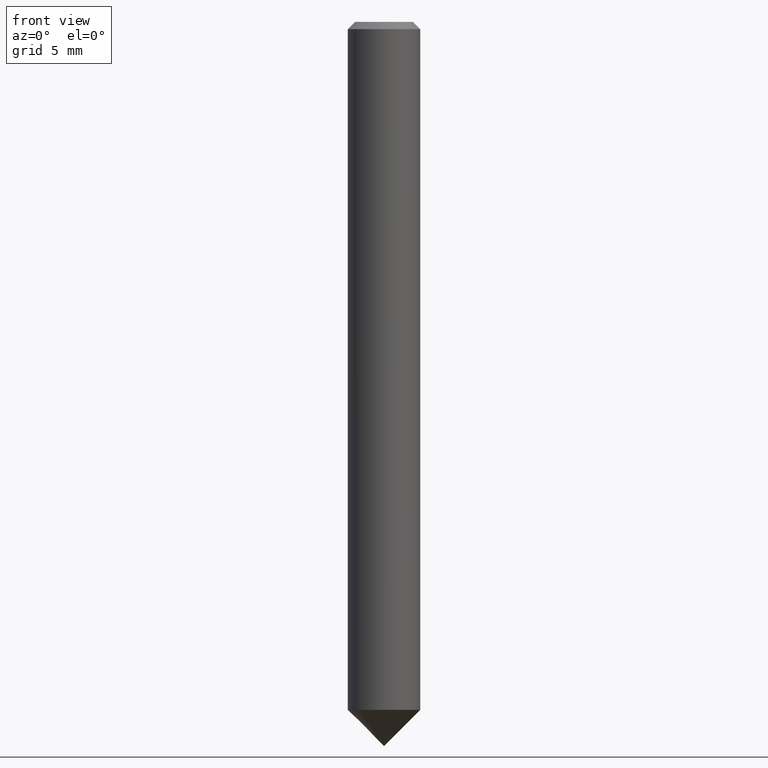
[diagram: clean part render]
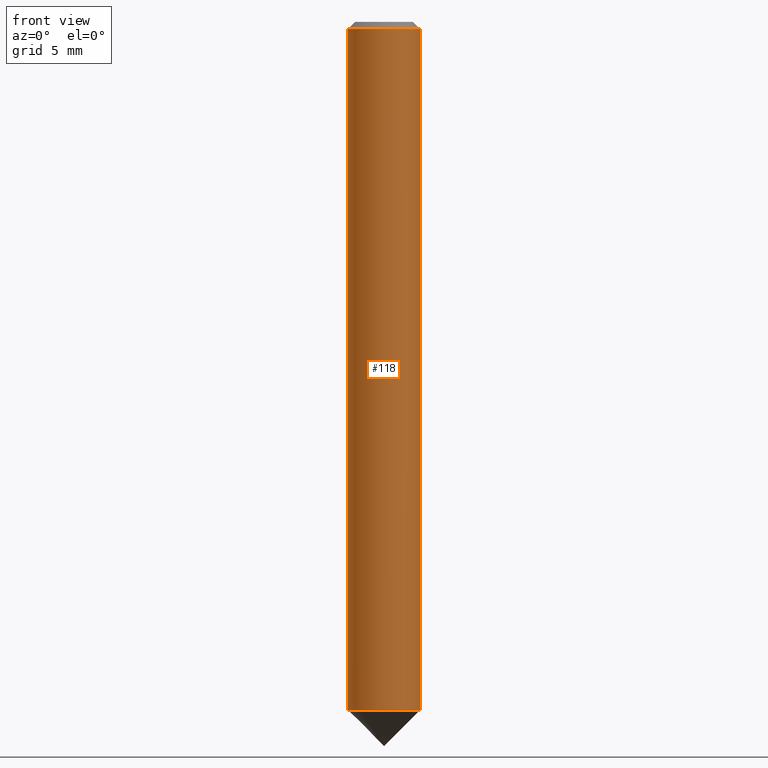
[diagram: same view with one face highlighted and labeled with its STEP entity id]
A machine part, front view. The second image highlights one B-rep face of the part: STEP entity #118.
In plain terms, the highlighted cylindrical surface (bore or boss wall) has radius 2.5 mm, axis along (-0, 0, -1).
Its self-contained STEP definition (entity closure, byte-faithful):
#11 = EDGE_CURVE ( 'NONE', #88, #88, #166, .T. ) ;
#14 = EDGE_LOOP ( 'NONE', ( #95 ) ) ;
#25 = CIRCLE ( 'NONE', #115, 2.499999999999999556 ) ;
#26 = CARTESIAN_POINT ( 'NONE',  ( -3.316907271900977823E-13, 0.0000000000000000000, -47.50000000000001421 ) ) ;
#27 = DIRECTION ( 'NONE',  ( -6.982962677686266711E-15, 0.0000000000000000000, -1.000000000000000000 ) ) ;
#28 = CYLINDRICAL_SURFACE ( 'NONE', #50, 2.499999999999999556 ) ;
#29 = FACE_OUTER_BOUND ( 'NONE', #67, .T. ) ;
#31 = FACE_OUTER_BOUND ( 'NONE', #14, .T. ) ;
#41 = DIRECTION ( 'NONE',  ( 1.000000000000000000, 0.0000000000000000000, -8.326672684688675631E-15 ) ) ;
#50 = AXIS2_PLACEMENT_3D ( 'NONE', #157, #27, #160 ) ;
#53 = EDGE_CURVE ( 'NONE', #135, #135, #25, .T. ) ;
#67 = EDGE_LOOP ( 'NONE', ( #123 ) ) ;
#85 = DIRECTION ( 'NONE',  ( 6.982962677686266711E-15, -0.0000000000000000000, 1.000000000000000000 ) ) ;
#86 = CARTESIAN_POINT ( 'NONE',  ( -2.500000000000003553, 0.0000000000000000000, -0.4999999999999830136 ) ) ;
#88 = VERTEX_POINT ( 'NONE', #86 ) ;
#95 = ORIENTED_EDGE ( 'NONE', *, *, #53, .T. ) ;
#108 = DIRECTION ( 'NONE',  ( -1.000000000000000000, 0.0000000000000000000, 6.982261990806648555E-15 ) ) ;
#115 = AXIS2_PLACEMENT_3D ( 'NONE', #26, #85, #41 ) ;
#118 = ADVANCED_FACE ( 'NONE', ( #31, #29 ), #28, .T. ) ;
#121 = AXIS2_PLACEMENT_3D ( 'NONE', #181, #144, #108 ) ;
#123 = ORIENTED_EDGE ( 'NONE', *, *, #11, .T. ) ;
#135 = VERTEX_POINT ( 'NONE', #146 ) ;
#144 = DIRECTION ( 'NONE',  ( -6.982962677686266711E-15, 0.0000000000000000000, -1.000000000000000000 ) ) ;
#146 = CARTESIAN_POINT ( 'NONE',  ( 2.499999999999667821, 0.0000000000000000000, -47.50000000000003553 ) ) ;
#157 = CARTESIAN_POINT ( 'NONE',  ( -3.491481338843133355E-13, 0.0000000000000000000, -50.00000000000000000 ) ) ;
#160 = DIRECTION ( 'NONE',  ( -1.000000000000000000, 0.0000000000000000000, 8.326672684688675631E-15 ) ) ;
#166 = CIRCLE ( 'NONE', #121, 2.500000000000000000 ) ;
#181 = CARTESIAN_POINT ( 'NONE',  ( -3.491481338843136511E-15, 0.0000000000000000000, -0.5000000000000004441 ) ) ;